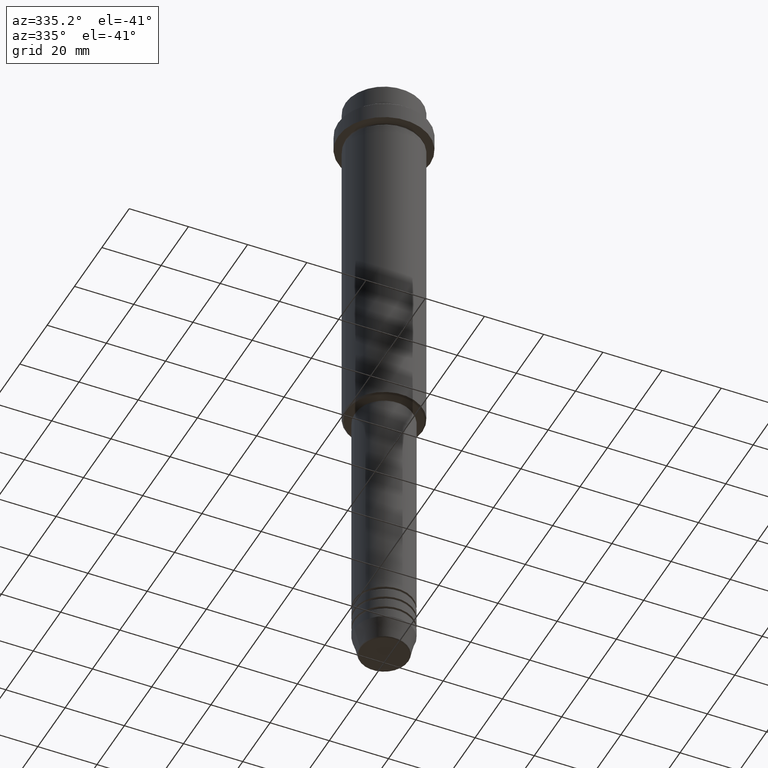
[diagram: clean part render]
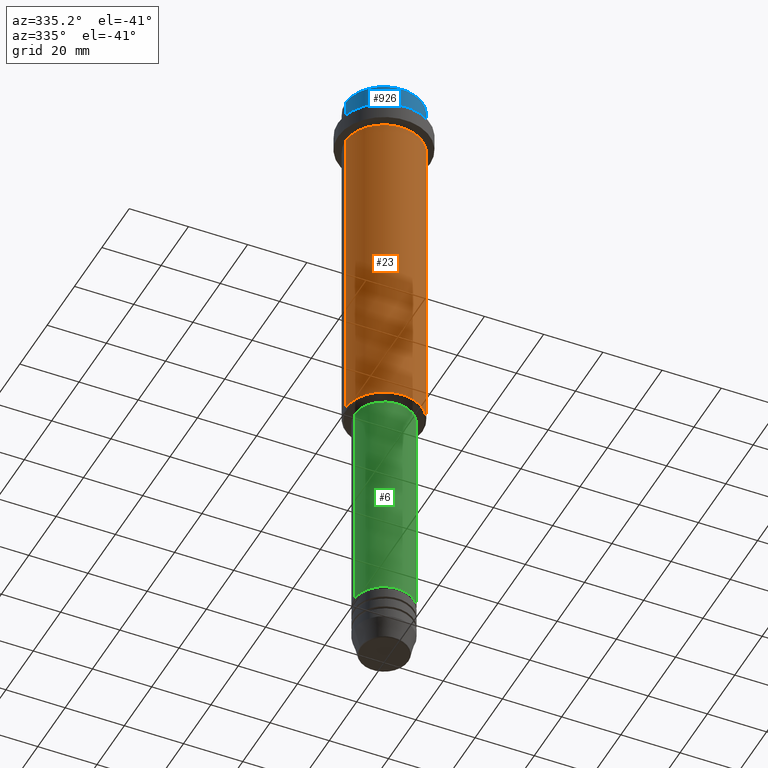
[diagram: same view with three faces highlighted in distinct colors, each labeled with its STEP entity id]
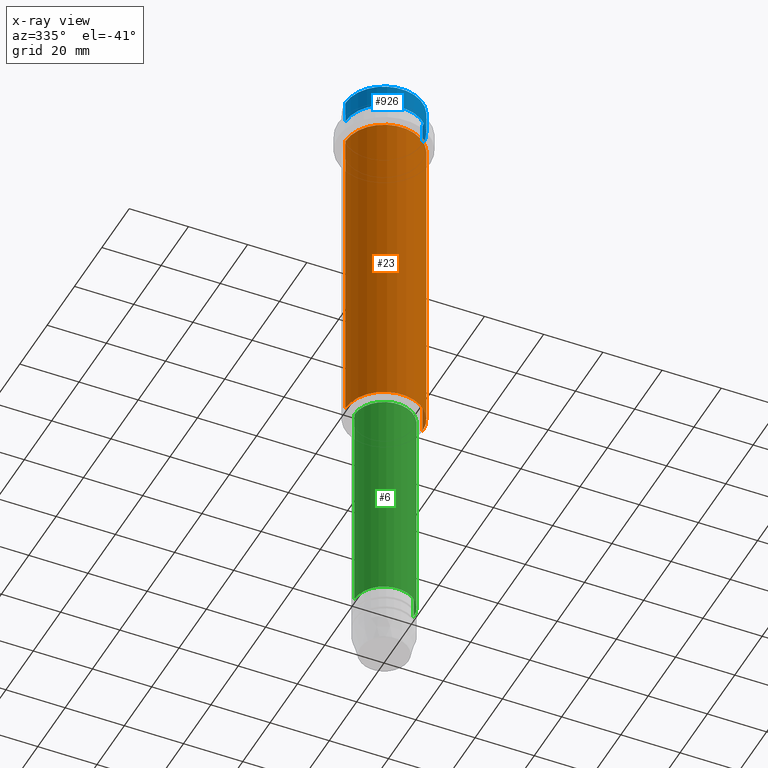
[diagram: x-ray of the same camera — body ghosted, the three highlighted faces saturated]
A machine part, auxiliary view with three faces highlighted in distinct colors.
The next image is the same camera in x-ray (body ghosted, the three faces saturated) — at least one of them is partly hidden behind the body in this view.
Their STEP definitions:

[orange] entity #23 — the highlighted cylindrical surface (partial cylindrical patch) has radius 13 mm, axis along (-0, -0, 1).
#23 = ADVANCED_FACE ( 'NONE', ( #1362 ), #492, .T. ) ;
#30 = CARTESIAN_POINT ( 'NONE',  ( 13.00000000000000000, 0.000000000000000000, 0.000000000000000000 ) ) ;
#45 = DIRECTION ( 'NONE',  ( -1.000000000000000000, 0.000000000000000000, 0.000000000000000000 ) ) ;
#65 = EDGE_CURVE ( 'NONE', #1270, #545, #1034, .T. ) ;
#88 = CARTESIAN_POINT ( 'NONE',  ( 13.00000000000000000, 0.000000000000000000, -124.4999999999999716 ) ) ;
#122 = DIRECTION ( 'NONE',  ( -0.000000000000000000, -0.000000000000000000, 1.000000000000000000 ) ) ;
#123 = VECTOR ( 'NONE', #1318, 1000.000000000000000 ) ;
#228 = VERTEX_POINT ( 'NONE', #574 ) ;
#240 = EDGE_CURVE ( 'NONE', #545, #841, #326, .T. ) ;
#257 = CARTESIAN_POINT ( 'NONE',  ( 13.00000000000000000, 0.000000000000000000, -16.00000000000000000 ) ) ;
#260 = CARTESIAN_POINT ( 'NONE',  ( 0.000000000000000000, 0.000000000000000000, -16.00000000000000000 ) ) ;
#261 = EDGE_CURVE ( 'NONE', #1270, #228, #901, .T. ) ;
#326 = LINE ( 'NONE', #30, #1335 ) ;
#336 = CARTESIAN_POINT ( 'NONE',  ( -13.00000000000000000, 1.592040838891559095E-15, 0.000000000000000000 ) ) ;
#384 = ORIENTED_EDGE ( 'NONE', *, *, #240, .T. ) ;
#437 = AXIS2_PLACEMENT_3D ( 'NONE', #260, #614, #1248 ) ;
#492 = CYLINDRICAL_SURFACE ( 'NONE', #1232, 13.00000000000000000 ) ;
#545 = VERTEX_POINT ( 'NONE', #88 ) ;
#574 = CARTESIAN_POINT ( 'NONE',  ( -13.00000000000000000, 1.592040838891559095E-15, -16.00000000000000000 ) ) ;
#614 = DIRECTION ( 'NONE',  ( -0.000000000000000000, -0.000000000000000000, 1.000000000000000000 ) ) ;
#694 = CIRCLE ( 'NONE', #437, 13.00000000000000000 ) ;
#725 = CARTESIAN_POINT ( 'NONE',  ( -13.00000000000000000, 1.592040838891559095E-15, -124.4999999999999716 ) ) ;
#807 = CARTESIAN_POINT ( 'NONE',  ( 0.000000000000000000, 0.000000000000000000, 0.000000000000000000 ) ) ;
#833 = EDGE_LOOP ( 'NONE', ( #1235, #984, #384, #1281 ) ) ;
#841 = VERTEX_POINT ( 'NONE', #257 ) ;
#901 = LINE ( 'NONE', #336, #123 ) ;
#934 = DIRECTION ( 'NONE',  ( 1.000000000000000000, 0.000000000000000000, 0.000000000000000000 ) ) ;
#984 = ORIENTED_EDGE ( 'NONE', *, *, #65, .T. ) ;
#1014 = AXIS2_PLACEMENT_3D ( 'NONE', #1126, #1025, #45 ) ;
#1025 = DIRECTION ( 'NONE',  ( -0.000000000000000000, -0.000000000000000000, 1.000000000000000000 ) ) ;
#1034 = CIRCLE ( 'NONE', #1014, 13.00000000000000000 ) ;
#1126 = CARTESIAN_POINT ( 'NONE',  ( 0.000000000000000000, 0.000000000000000000, -124.4999999999999716 ) ) ;
#1130 = DIRECTION ( 'NONE',  ( -0.000000000000000000, -0.000000000000000000, 1.000000000000000000 ) ) ;
#1232 = AXIS2_PLACEMENT_3D ( 'NONE', #807, #1130, #934 ) ;
#1235 = ORIENTED_EDGE ( 'NONE', *, *, #261, .F. ) ;
#1248 = DIRECTION ( 'NONE',  ( 1.000000000000000000, 0.000000000000000000, 0.000000000000000000 ) ) ;
#1270 = VERTEX_POINT ( 'NONE', #725 ) ;
#1281 = ORIENTED_EDGE ( 'NONE', *, *, #1331, .F. ) ;
#1318 = DIRECTION ( 'NONE',  ( -0.000000000000000000, -0.000000000000000000, 1.000000000000000000 ) ) ;
#1331 = EDGE_CURVE ( 'NONE', #228, #841, #694, .T. ) ;
#1335 = VECTOR ( 'NONE', #122, 1000.000000000000000 ) ;
#1362 = FACE_OUTER_BOUND ( 'NONE', #833, .T. ) ;

[blue] entity #926 — the highlighted cylindrical surface (partial cylindrical patch) has radius 13 mm, axis along (-0, -0, 1).
#51 = CARTESIAN_POINT ( 'NONE',  ( -12.99999999999999822, 1.592040838891558898E-15, -7.999999999999998224 ) ) ;
#80 = AXIS2_PLACEMENT_3D ( 'NONE', #244, #1122, #618 ) ;
#130 = CARTESIAN_POINT ( 'NONE',  ( 12.99999999999999822, 0.000000000000000000, -7.999999999999998224 ) ) ;
#141 = DIRECTION ( 'NONE',  ( -0.000000000000000000, -0.000000000000000000, 1.000000000000000000 ) ) ;
#186 = AXIS2_PLACEMENT_3D ( 'NONE', #1086, #513, #1068 ) ;
#198 = EDGE_CURVE ( 'NONE', #1323, #532, #637, .T. ) ;
#244 = CARTESIAN_POINT ( 'NONE',  ( 0.000000000000000000, 0.000000000000000000, 0.000000000000000000 ) ) ;
#247 = AXIS2_PLACEMENT_3D ( 'NONE', #987, #141, #1330 ) ;
#271 = VECTOR ( 'NONE', #464, 1000.000000000000000 ) ;
#283 = EDGE_CURVE ( 'NONE', #1323, #762, #940, .T. ) ;
#288 = CARTESIAN_POINT ( 'NONE',  ( -12.99999999999999822, 1.592040838891558898E-15, -0.4999999999999483746 ) ) ;
#363 = ORIENTED_EDGE ( 'NONE', *, *, #862, .T. ) ;
#449 = EDGE_LOOP ( 'NONE', ( #781, #539, #363, #489 ) ) ;
#460 = CYLINDRICAL_SURFACE ( 'NONE', #80, 12.99999999999999822 ) ;
#464 = DIRECTION ( 'NONE',  ( -0.000000000000000000, -0.000000000000000000, 1.000000000000000000 ) ) ;
#489 = ORIENTED_EDGE ( 'NONE', *, *, #541, .T. ) ;
#501 = VECTOR ( 'NONE', #1069, 1000.000000000000000 ) ;
#513 = DIRECTION ( 'NONE',  ( 0.000000000000000000, 0.000000000000000000, -1.000000000000000000 ) ) ;
#532 = VERTEX_POINT ( 'NONE', #288 ) ;
#539 = ORIENTED_EDGE ( 'NONE', *, *, #283, .T. ) ;
#541 = EDGE_CURVE ( 'NONE', #890, #532, #626, .T. ) ;
#571 = CARTESIAN_POINT ( 'NONE',  ( 12.99999999999999822, 0.000000000000000000, -0.4999999999999483746 ) ) ;
#618 = DIRECTION ( 'NONE',  ( 1.000000000000000000, 0.000000000000000000, 0.000000000000000000 ) ) ;
#626 = CIRCLE ( 'NONE', #186, 12.99999999999999822 ) ;
#632 = CARTESIAN_POINT ( 'NONE',  ( -12.99999999999999822, 1.592040838891558898E-15, 0.000000000000000000 ) ) ;
#637 = LINE ( 'NONE', #632, #501 ) ;
#762 = VERTEX_POINT ( 'NONE', #130 ) ;
#781 = ORIENTED_EDGE ( 'NONE', *, *, #198, .F. ) ;
#862 = EDGE_CURVE ( 'NONE', #762, #890, #1023, .T. ) ;
#890 = VERTEX_POINT ( 'NONE', #571 ) ;
#926 = ADVANCED_FACE ( 'NONE', ( #1018 ), #460, .T. ) ;
#940 = CIRCLE ( 'NONE', #247, 12.99999999999999822 ) ;
#987 = CARTESIAN_POINT ( 'NONE',  ( 0.000000000000000000, 0.000000000000000000, -7.999999999999998224 ) ) ;
#1018 = FACE_OUTER_BOUND ( 'NONE', #449, .T. ) ;
#1023 = LINE ( 'NONE', #1358, #271 ) ;
#1068 = DIRECTION ( 'NONE',  ( 1.000000000000000000, 0.000000000000000000, 0.000000000000000000 ) ) ;
#1069 = DIRECTION ( 'NONE',  ( -0.000000000000000000, -0.000000000000000000, 1.000000000000000000 ) ) ;
#1086 = CARTESIAN_POINT ( 'NONE',  ( 0.000000000000000000, 0.000000000000000000, -0.4999999999999483746 ) ) ;
#1122 = DIRECTION ( 'NONE',  ( -0.000000000000000000, -0.000000000000000000, 1.000000000000000000 ) ) ;
#1323 = VERTEX_POINT ( 'NONE', #51 ) ;
#1330 = DIRECTION ( 'NONE',  ( 1.000000000000000000, 0.000000000000000000, 0.000000000000000000 ) ) ;
#1358 = CARTESIAN_POINT ( 'NONE',  ( 12.99999999999999822, 0.000000000000000000, 0.000000000000000000 ) ) ;

[green] entity #6 — the highlighted cylindrical surface (edge-blend (fillet) strip) has radius 10 mm, axis along (-0, -0, 1).
#6 = ADVANCED_FACE ( 'NONE', ( #163 ), #73, .T. ) ;
#10 = CARTESIAN_POINT ( 'NONE',  ( 0.000000000000000000, 0.000000000000000000, -200.9999999999999147 ) ) ;
#28 = VECTOR ( 'NONE', #959, 1000.000000000000000 ) ;
#41 = DIRECTION ( 'NONE',  ( 1.000000000000000000, 0.000000000000000000, 0.000000000000000000 ) ) ;
#67 = CARTESIAN_POINT ( 'NONE',  ( 0.000000000000000000, 0.000000000000000000, 0.000000000000000000 ) ) ;
#69 = ORIENTED_EDGE ( 'NONE', *, *, #1111, .F. ) ;
#73 = CYLINDRICAL_SURFACE ( 'NONE', #267, 10.00000000000000178 ) ;
#163 = FACE_OUTER_BOUND ( 'NONE', #1092, .T. ) ;
#167 = EDGE_CURVE ( 'NONE', #259, #340, #867, .T. ) ;
#212 = LINE ( 'NONE', #1169, #28 ) ;
#259 = VERTEX_POINT ( 'NONE', #1201 ) ;
#267 = AXIS2_PLACEMENT_3D ( 'NONE', #67, #589, #913 ) ;
#304 = EDGE_CURVE ( 'NONE', #259, #585, #1120, .T. ) ;
#319 = CARTESIAN_POINT ( 'NONE',  ( -10.00000000000000178, 1.224646799147353454E-15, -126.0000000000000000 ) ) ;
#340 = VERTEX_POINT ( 'NONE', #319 ) ;
#347 = ORIENTED_EDGE ( 'NONE', *, *, #1416, .T. ) ;
#350 = ORIENTED_EDGE ( 'NONE', *, *, #304, .T. ) ;
#413 = CARTESIAN_POINT ( 'NONE',  ( -10.00000000000000178, 1.224646799147353454E-15, 0.000000000000000000 ) ) ;
#430 = AXIS2_PLACEMENT_3D ( 'NONE', #10, #461, #1110 ) ;
#459 = AXIS2_PLACEMENT_3D ( 'NONE', #914, #1127, #41 ) ;
#461 = DIRECTION ( 'NONE',  ( -0.000000000000000000, -0.000000000000000000, 1.000000000000000000 ) ) ;
#585 = VERTEX_POINT ( 'NONE', #1396 ) ;
#589 = DIRECTION ( 'NONE',  ( -0.000000000000000000, -0.000000000000000000, 1.000000000000000000 ) ) ;
#714 = VECTOR ( 'NONE', #1310, 1000.000000000000000 ) ;
#867 = LINE ( 'NONE', #413, #714 ) ;
#913 = DIRECTION ( 'NONE',  ( 1.000000000000000000, 0.000000000000000000, 0.000000000000000000 ) ) ;
#914 = CARTESIAN_POINT ( 'NONE',  ( 0.000000000000000000, 0.000000000000000000, -126.0000000000000000 ) ) ;
#947 = CIRCLE ( 'NONE', #459, 10.00000000000000178 ) ;
#959 = DIRECTION ( 'NONE',  ( -0.000000000000000000, -0.000000000000000000, 1.000000000000000000 ) ) ;
#1092 = EDGE_LOOP ( 'NONE', ( #1364, #350, #347, #69 ) ) ;
#1110 = DIRECTION ( 'NONE',  ( 1.000000000000000000, 0.000000000000000000, 0.000000000000000000 ) ) ;
#1111 = EDGE_CURVE ( 'NONE', #340, #1370, #947, .T. ) ;
#1120 = CIRCLE ( 'NONE', #430, 10.00000000000000000 ) ;
#1127 = DIRECTION ( 'NONE',  ( -0.000000000000000000, -0.000000000000000000, 1.000000000000000000 ) ) ;
#1162 = CARTESIAN_POINT ( 'NONE',  ( 10.00000000000000178, 0.000000000000000000, -126.0000000000000000 ) ) ;
#1169 = CARTESIAN_POINT ( 'NONE',  ( 10.00000000000000178, 0.000000000000000000, 0.000000000000000000 ) ) ;
#1201 = CARTESIAN_POINT ( 'NONE',  ( -10.00000000000000000, 1.224646799147353256E-15, -200.9999999999999147 ) ) ;
#1310 = DIRECTION ( 'NONE',  ( -0.000000000000000000, -0.000000000000000000, 1.000000000000000000 ) ) ;
#1364 = ORIENTED_EDGE ( 'NONE', *, *, #167, .F. ) ;
#1370 = VERTEX_POINT ( 'NONE', #1162 ) ;
#1396 = CARTESIAN_POINT ( 'NONE',  ( 10.00000000000000000, 0.000000000000000000, -200.9999999999999147 ) ) ;
#1416 = EDGE_CURVE ( 'NONE', #585, #1370, #212, .T. ) ;